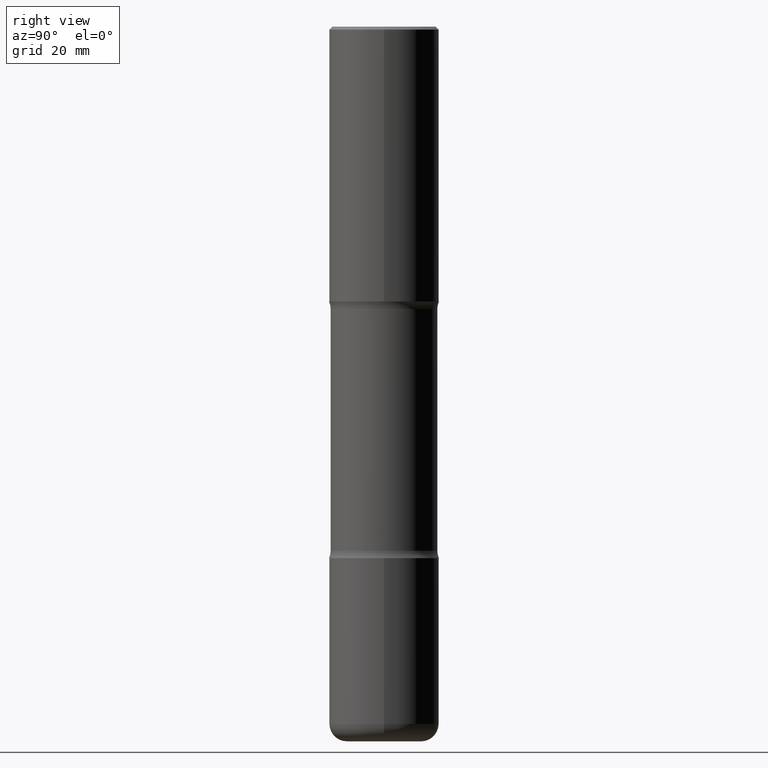
[diagram: clean part render]
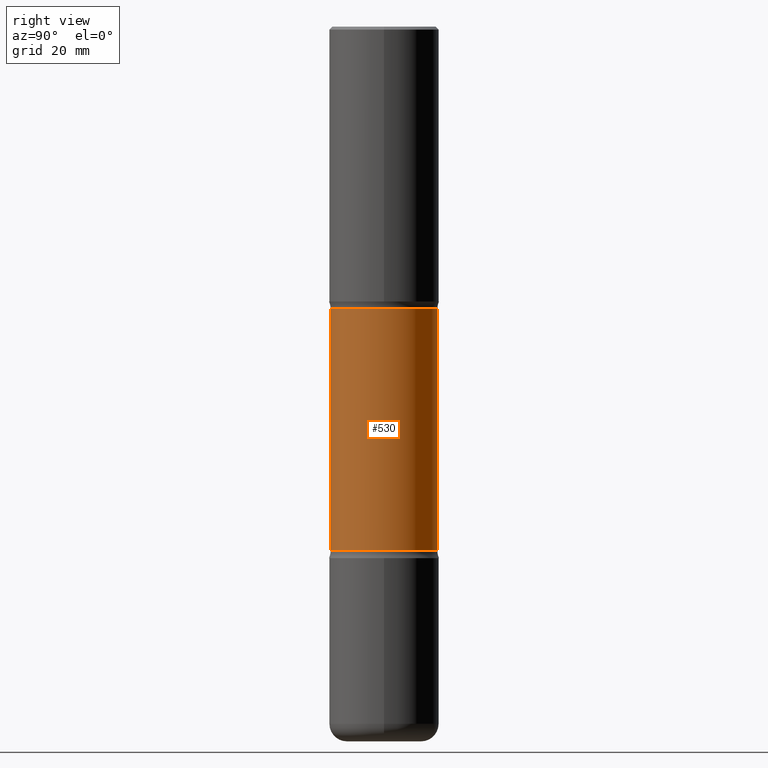
[diagram: same view with one face highlighted and labeled with its STEP entity id]
A machine part, right view. The second image highlights one B-rep face of the part: STEP entity #530.
In plain terms, the highlighted cylindrical surface (partial cylindrical patch) has radius 9.2456 mm, axis along (0, -0, -1).
Its self-contained STEP definition (entity closure, byte-faithful):
#1 = ORIENTED_EDGE ( 'NONE', *, *, #447, .F. ) ;
#41 = CARTESIAN_POINT ( 'NONE',  ( -2.534954010176537181E-15, -0.3640000000000067626, -1.926273774973176645 ) ) ;
#42 = VERTEX_POINT ( 'NONE', #428 ) ;
#57 = CIRCLE ( 'NONE', #131, 0.3639999999999999902 ) ;
#65 = CARTESIAN_POINT ( 'NONE',  ( 2.541798414677888268E-15, 0.3639999999999875002, -3.573726225026824022 ) ) ;
#110 = EDGE_CURVE ( 'NONE', #393, #494, #348, .T. ) ;
#112 = DIRECTION ( 'NONE',  ( 2.483621591346876318E-29, -3.436844378969860121E-15, -1.000000000000000000 ) ) ;
#116 = CARTESIAN_POINT ( 'NONE',  ( -2.497221271188717288E-15, -0.3640000000000169211, -4.874999999999999112 ) ) ;
#126 = ORIENTED_EDGE ( 'NONE', *, *, #352, .T. ) ;
#131 = AXIS2_PLACEMENT_3D ( 'NONE', #551, #222, #371 ) ;
#134 = LINE ( 'NONE', #303, #399 ) ;
#143 = AXIS2_PLACEMENT_3D ( 'NONE', #392, #309, #273 ) ;
#161 = CARTESIAN_POINT ( 'NONE',  ( 2.541798414677846852E-15, 0.3639999999999931068, -1.926273774973179531 ) ) ;
#177 = DIRECTION ( 'NONE',  ( 2.483621591346876038E-29, -3.436844378969860121E-15, -1.000000000000000000 ) ) ;
#193 = ORIENTED_EDGE ( 'NONE', *, *, #110, .T. ) ;
#208 = DIRECTION ( 'NONE',  ( 2.483621591346876318E-29, -3.436844378969860121E-15, -1.000000000000000000 ) ) ;
#209 = CARTESIAN_POINT ( 'NONE',  ( 4.645831292157334029E-29, -6.818362175414279204E-15, -1.926273774973178199 ) ) ;
#222 = DIRECTION ( 'NONE',  ( 2.483621591346876038E-29, -3.436844378969860121E-15, -1.000000000000000000 ) ) ;
#224 = CYLINDRICAL_SURFACE ( 'NONE', #143, 0.3639999999999999902 ) ;
#271 = FACE_OUTER_BOUND ( 'NONE', #340, .T. ) ;
#273 = DIRECTION ( 'NONE',  ( 6.982962677686265922E-15, 1.000000000000000000, -3.002030762268421058E-15 ) ) ;
#303 = CARTESIAN_POINT ( 'NONE',  ( 2.541798414677920611E-15, 0.3639999999999830593, -4.875000000000001776 ) ) ;
#309 = DIRECTION ( 'NONE',  ( 2.483621591346876038E-29, -3.436844378969860121E-15, -1.000000000000000000 ) ) ;
#320 = ORIENTED_EDGE ( 'NONE', *, *, #406, .F. ) ;
#340 = EDGE_LOOP ( 'NONE', ( #193, #126, #1, #320 ) ) ;
#348 = CIRCLE ( 'NONE', #488, 0.3639999999999999347 ) ;
#352 = EDGE_CURVE ( 'NONE', #494, #42, #429, .T. ) ;
#371 = DIRECTION ( 'NONE',  ( 6.982962677686265922E-15, 1.000000000000000000, -3.002030762268421058E-15 ) ) ;
#373 = DIRECTION ( 'NONE',  ( 6.982962677686265922E-15, 1.000000000000000000, -3.752538452835526915E-15 ) ) ;
#376 = VERTEX_POINT ( 'NONE', #65 ) ;
#392 = CARTESIAN_POINT ( 'NONE',  ( 1.196935141160471570E-28, -1.695267532701872981E-14, -4.875000000000000000 ) ) ;
#393 = VERTEX_POINT ( 'NONE', #161 ) ;
#399 = VECTOR ( 'NONE', #208, 39.37007874015748143 ) ;
#406 = EDGE_CURVE ( 'NONE', #393, #376, #134, .T. ) ;
#428 = CARTESIAN_POINT ( 'NONE',  ( -2.534954010176493005E-15, -0.3640000000000124802, -3.573726225026821801 ) ) ;
#429 = LINE ( 'NONE', #116, #525 ) ;
#447 = EDGE_CURVE ( 'NONE', #376, #42, #57, .T. ) ;
#488 = AXIS2_PLACEMENT_3D ( 'NONE', #209, #177, #373 ) ;
#494 = VERTEX_POINT ( 'NONE', #41 ) ;
#525 = VECTOR ( 'NONE', #112, 39.37007874015748143 ) ;
#530 = ADVANCED_FACE ( 'NONE', ( #271 ), #224, .T. ) ;
#551 = CARTESIAN_POINT ( 'NONE',  ( 8.737479767827876244E-29, -1.248039986800127244E-14, -3.573726225026822689 ) ) ;